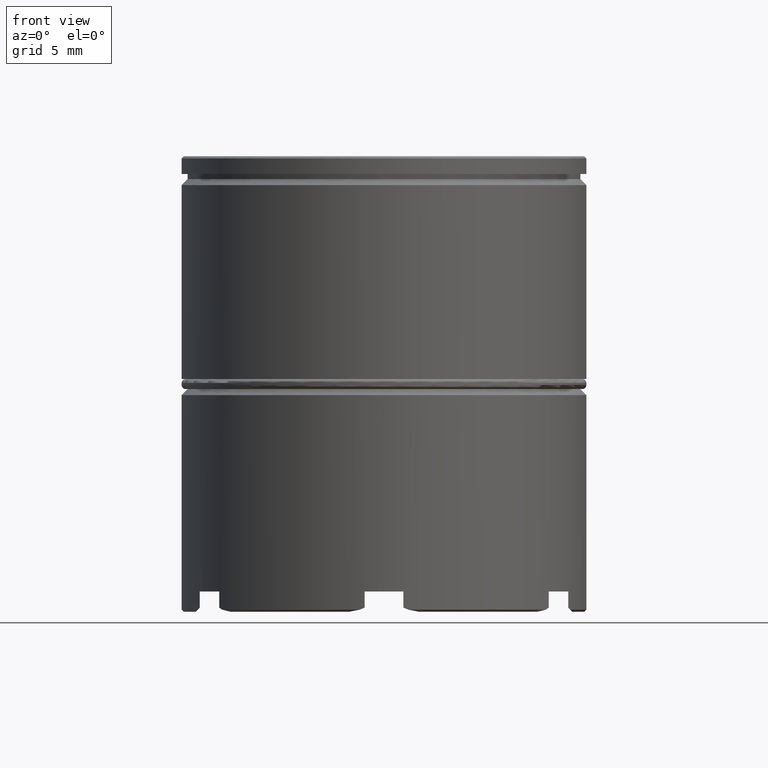
[diagram: clean part render]
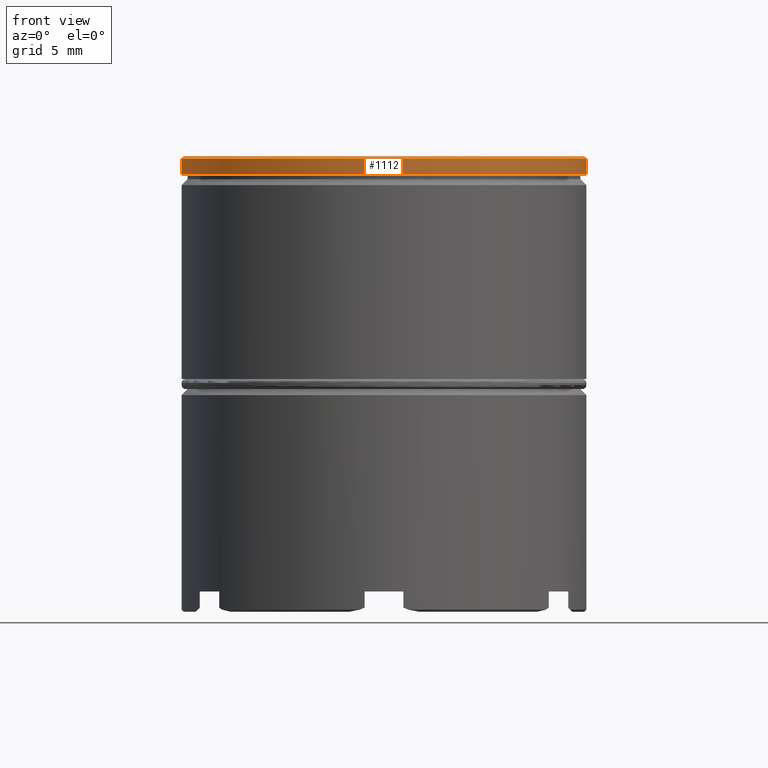
[diagram: same view with one face highlighted and labeled with its STEP entity id]
A machine part, front view. The second image highlights one B-rep face of the part: STEP entity #1112.
In plain terms, the highlighted cylindrical surface (partial cylindrical patch) has radius 10 mm, axis along (-0, -0, 1).
Its self-contained STEP definition (entity closure, byte-faithful):
#67 = DIRECTION ( 'NONE',  ( -0.000000000000000000, -0.000000000000000000, 1.000000000000000000 ) ) ;
#86 = ORIENTED_EDGE ( 'NONE', *, *, #1458, .T. ) ;
#104 = VERTEX_POINT ( 'NONE', #137 ) ;
#127 = AXIS2_PLACEMENT_3D ( 'NONE', #740, #1253, #500 ) ;
#137 = CARTESIAN_POINT ( 'NONE',  ( -10.00000000000000000, 1.224646799147353256E-15, -0.8749999999999998890 ) ) ;
#191 = LINE ( 'NONE', #1198, #388 ) ;
#336 = DIRECTION ( 'NONE',  ( 1.000000000000000000, 0.000000000000000000, 0.000000000000000000 ) ) ;
#341 = VECTOR ( 'NONE', #507, 1000.000000000000000 ) ;
#352 = ORIENTED_EDGE ( 'NONE', *, *, #1368, .T. ) ;
#386 = CIRCLE ( 'NONE', #1369, 10.00000000000000000 ) ;
#388 = VECTOR ( 'NONE', #67, 1000.000000000000000 ) ;
#399 = ORIENTED_EDGE ( 'NONE', *, *, #681, .T. ) ;
#459 = CYLINDRICAL_SURFACE ( 'NONE', #777, 10.00000000000000000 ) ;
#500 = DIRECTION ( 'NONE',  ( 1.000000000000000000, 0.000000000000000000, 0.000000000000000000 ) ) ;
#507 = DIRECTION ( 'NONE',  ( -0.000000000000000000, -0.000000000000000000, 1.000000000000000000 ) ) ;
#617 = EDGE_LOOP ( 'NONE', ( #824, #352, #86, #399 ) ) ;
#681 = EDGE_CURVE ( 'NONE', #1466, #1100, #386, .T. ) ;
#740 = CARTESIAN_POINT ( 'NONE',  ( 0.000000000000000000, 0.000000000000000000, -0.8749999999999998890 ) ) ;
#777 = AXIS2_PLACEMENT_3D ( 'NONE', #839, #1182, #1064 ) ;
#824 = ORIENTED_EDGE ( 'NONE', *, *, #1238, .F. ) ;
#839 = CARTESIAN_POINT ( 'NONE',  ( 0.000000000000000000, 0.000000000000000000, 0.000000000000000000 ) ) ;
#841 = CIRCLE ( 'NONE', #127, 10.00000000000000000 ) ;
#953 = FACE_OUTER_BOUND ( 'NONE', #617, .T. ) ;
#1031 = CARTESIAN_POINT ( 'NONE',  ( -10.00000000000000000, 1.224646799147353256E-15, 0.000000000000000000 ) ) ;
#1064 = DIRECTION ( 'NONE',  ( 1.000000000000000000, 0.000000000000000000, 0.000000000000000000 ) ) ;
#1079 = CARTESIAN_POINT ( 'NONE',  ( 10.00000000000000000, 0.000000000000000000, -0.1000000000000011297 ) ) ;
#1100 = VERTEX_POINT ( 'NONE', #1597 ) ;
#1112 = ADVANCED_FACE ( 'NONE', ( #953 ), #459, .T. ) ;
#1182 = DIRECTION ( 'NONE',  ( -0.000000000000000000, -0.000000000000000000, 1.000000000000000000 ) ) ;
#1198 = CARTESIAN_POINT ( 'NONE',  ( 10.00000000000000000, 0.000000000000000000, 0.000000000000000000 ) ) ;
#1228 = VERTEX_POINT ( 'NONE', #1624 ) ;
#1238 = EDGE_CURVE ( 'NONE', #104, #1100, #1284, .T. ) ;
#1253 = DIRECTION ( 'NONE',  ( -0.000000000000000000, -0.000000000000000000, 1.000000000000000000 ) ) ;
#1284 = LINE ( 'NONE', #1031, #341 ) ;
#1368 = EDGE_CURVE ( 'NONE', #104, #1228, #841, .T. ) ;
#1369 = AXIS2_PLACEMENT_3D ( 'NONE', #1596, #1481, #336 ) ;
#1458 = EDGE_CURVE ( 'NONE', #1228, #1466, #191, .T. ) ;
#1466 = VERTEX_POINT ( 'NONE', #1079 ) ;
#1481 = DIRECTION ( 'NONE',  ( 0.000000000000000000, 0.000000000000000000, -1.000000000000000000 ) ) ;
#1596 = CARTESIAN_POINT ( 'NONE',  ( 0.000000000000000000, 0.000000000000000000, -0.1000000000000011297 ) ) ;
#1597 = CARTESIAN_POINT ( 'NONE',  ( -10.00000000000000000, 1.224646799147353256E-15, -0.1000000000000011297 ) ) ;
#1624 = CARTESIAN_POINT ( 'NONE',  ( 10.00000000000000000, 0.000000000000000000, -0.8749999999999998890 ) ) ;